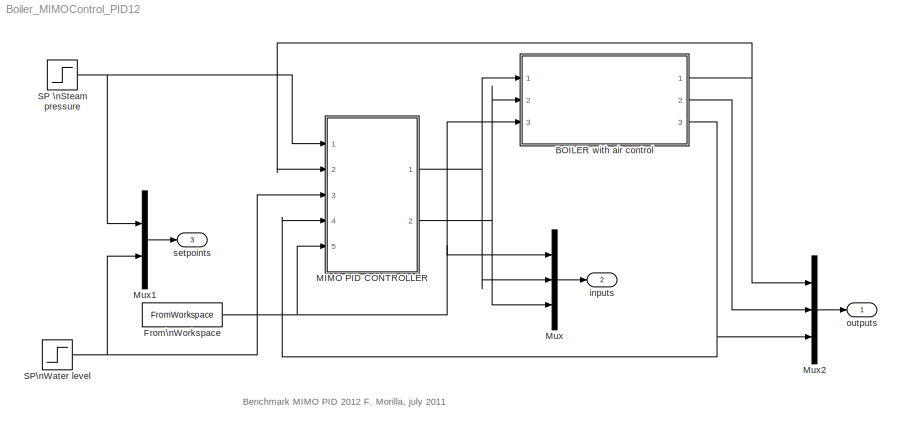
MODEL Boiler_MIMOControl_PID12
KIND model
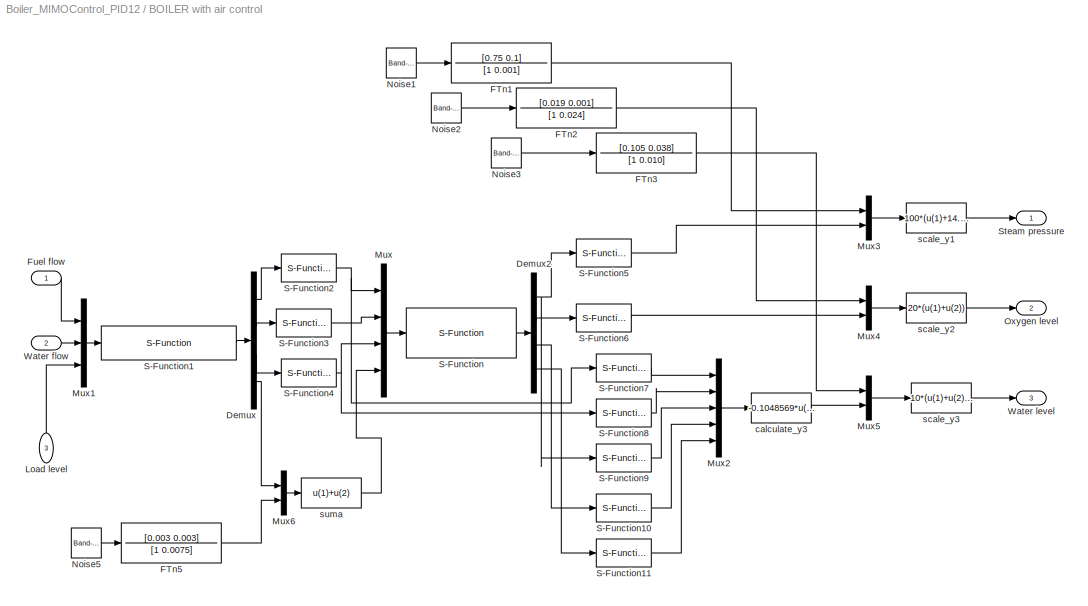
BLOCK [SubSystem] BOILER with air control
  Permissions = NoReadOrWrite
  Ports = [3, 3]
  RequestExecContextInheritance = off
  SID = 1
BLOCK [Demux] BOILER with air control/Demux
  DisplayOption = bar
  Ports = [1, 4]
  SID = 5
BLOCK [Demux] BOILER with air control/Demux2
  DisplayOption = bar
  Ports = [1, 4]
  SID = 6
BLOCK [TransferFcn] BOILER with air control/FTn1
  Denominator = [1 0.001]
  Numerator = [0.75 0.1]
  SID = 7
BLOCK [TransferFcn] BOILER with air control/FTn2
  Denominator = [1 0.024]
  Numerator = [0.019 0.001]
  SID = 8
BLOCK [TransferFcn] BOILER with air control/FTn3
  Denominator = [1 0.010]
  Numerator = [0.105 0.038]
  SID = 9
BLOCK [TransferFcn] BOILER with air control/FTn5
  Denominator = [1 0.0075]
  Numerator = [0.003 0.003]
  SID = 10
BLOCK [Inport] BOILER with air control/Fuel flow
  IconDisplay = Port number
  SID = 2
BLOCK [Inport] BOILER with air control/Load level
  IconDisplay = Port number
  Port = 3
  SID = 4
BLOCK [Mux] BOILER with air control/Mux
  DisplayOption = bar
  Ports = [4, 1]
  SID = 11
BLOCK [Mux] BOILER with air control/Mux1
  DisplayOption = bar
  Inputs = 3
  Ports = [3, 1]
  SID = 12
BLOCK [Mux] BOILER with air control/Mux2
  DisplayOption = bar
  Inputs = 5
  Ports = [5, 1]
  SID = 13
BLOCK [Mux] BOILER with air control/Mux3
  DisplayOption = bar
  Inputs = 2
  Ports = [2, 1]
  SID = 14
BLOCK [Mux] BOILER with air control/Mux4
  DisplayOption = bar
  Inputs = 2
  Ports = [2, 1]
  SID = 15
BLOCK [Mux] BOILER with air control/Mux5
  DisplayOption = bar
  Inputs = 2
  Ports = [2, 1]
  SID = 16
BLOCK [Mux] BOILER with air control/Mux6
  DisplayOption = bar
  Inputs = 2
  Ports = [2, 1]
  SID = 17
BLOCK [Reference] BOILER with air control/Noise1  REF=simulink/Sources/Band-Limited\nWhite Noise
  Cov = 0.001
  Ports = [0, 1]
  SID = 18
  ShowPortLabels = on
  SourceBlock = simulink/Sources/Band-Limited\nWhite Noise
  SourceProductBaseCode = SL
  SourceProductName = Simulink
  SourceType = Band-Limited White Noise.
  Ts = 0.1
  VectorParams1D = on
  seed = [23341]
BLOCK [Reference] BOILER with air control/Noise2  REF=simulink/Sources/Band-Limited\nWhite Noise
  Cov = 0.0125
  Ports = [0, 1]
  SID = 19
  ShowPortLabels = on
  SourceBlock = simulink/Sources/Band-Limited\nWhite Noise
  SourceProductBaseCode = SL
  SourceProductName = Simulink
  SourceType = Band-Limited White Noise.
  Ts = 0.1
  VectorParams1D = on
  seed = [23341]
BLOCK [Reference] BOILER with air control/Noise3  REF=simulink/Sources/Band-Limited\nWhite Noise
  Cov = 0.0001
  Ports = [0, 1]
  SID = 20
  ShowPortLabels = on
  SourceBlock = simulink/Sources/Band-Limited\nWhite Noise
  SourceProductBaseCode = SL
  SourceProductName = Simulink
  SourceType = Band-Limited White Noise.
  Ts = 0.1
  VectorParams1D = on
  seed = [23341]
BLOCK [Reference] BOILER with air control/Noise5  REF=simulink/Sources/Band-Limited\nWhite Noise
  Cov = 0.000001
  Ports = [0, 1]
  SID = 21
  ShowPortLabels = on
  SourceBlock = simulink/Sources/Band-Limited\nWhite Noise
  SourceProductBaseCode = SL
  SourceProductName = Simulink
  SourceType = Band-Limited White Noise.
  Ts = 0.1
  VectorParams1D = on
  seed = [23341]
BLOCK [Outport] BOILER with air control/Oxygen level
  IconDisplay = Port number
  Port = 2
  SID = 40
BLOCK [S-Function] BOILER with air control/S-Function
  EnableBusSupport = off
  FunctionName = boilerstates
  Parameters = xo
  Ports = [1, 1]
  SFcnIsStateOwnerBlock = off
  SFunctionDeploymentMode = off
  SID = 22
BLOCK [S-Function] BOILER with air control/S-Function1
  EnableBusSupport = off
  FunctionName = ratio_constraints_scale
  Parameters = [Uo' loadlevel(1,2)],xo(2)
  Ports = [1, 1]
  SFcnIsStateOwnerBlock = off
  SFunctionDeploymentMode = off
  SID = 23
BLOCK [S-Function] BOILER with air control/S-Function10
  EnableBusSupport = off
  FunctionName = register10
  Parameters = xo(3)
  Ports = [1, 1]
  SFcnIsStateOwnerBlock = off
  SFunctionDeploymentMode = off
  SID = 24
BLOCK [S-Function] BOILER with air control/S-Function11
  EnableBusSupport = off
  FunctionName = register10
  Parameters = xo(4)
  Ports = [1, 1]
  SFcnIsStateOwnerBlock = off
  SFunctionDeploymentMode = off
  SID = 25
BLOCK [S-Function] BOILER with air control/S-Function2
  EnableBusSupport = off
  FunctionName = register10
  Parameters = uo(1)
  Ports = [1, 1]
  SFcnIsStateOwnerBlock = off
  SFunctionDeploymentMode = off
  SID = 26
BLOCK [S-Function] BOILER with air control/S-Function3
  EnableBusSupport = off
  FunctionName = register10
  Parameters = uo(2)
  Ports = [1, 1]
  SFcnIsStateOwnerBlock = off
  SFunctionDeploymentMode = off
  SID = 27
BLOCK [S-Function] BOILER with air control/S-Function4
  EnableBusSupport = off
  FunctionName = register15
  Parameters = uo(3)
  Ports = [1, 1]
  SFcnIsStateOwnerBlock = off
  SFunctionDeploymentMode = off
  SID = 28
BLOCK [S-Function] BOILER with air control/S-Function5
  EnableBusSupport = off
  FunctionName = register15
  Parameters = xo(1)
  Ports = [1, 1]
  SFcnIsStateOwnerBlock = off
  SFunctionDeploymentMode = off
  SID = 29
BLOCK [S-Function] BOILER with air control/S-Function6
  EnableBusSupport = off
  FunctionName = register20
  Parameters = xo(2)
  Ports = [1, 1]
  SFcnIsStateOwnerBlock = off
  SFunctionDeploymentMode = off
  SID = 30
BLOCK [S-Function] BOILER with air control/S-Function7
  EnableBusSupport = off
  FunctionName = register10
  Parameters = uo(1)
  Ports = [1, 1]
  SFcnIsStateOwnerBlock = off
  SFunctionDeploymentMode = off
  SID = 31
BLOCK [S-Function] BOILER with air control/S-Function8
  EnableBusSupport = off
  FunctionName = register10
  Parameters = uo(3)
  Ports = [1, 1]
  SFcnIsStateOwnerBlock = off
  SFunctionDeploymentMode = off
  SID = 32
BLOCK [S-Function] BOILER with air control/S-Function9
  EnableBusSupport = off
  FunctionName = register10
  Parameters = xo(1)
  Ports = [1, 1]
  SFcnIsStateOwnerBlock = off
  SFunctionDeploymentMode = off
  SID = 33
BLOCK [Outport] BOILER with air control/Steam pressure
  IconDisplay = Port number
  SID = 39
BLOCK [Inport] BOILER with air control/Water flow
  IconDisplay = Port number
  Port = 2
  SID = 3
BLOCK [Outport] BOILER with air control/Water level
  IconDisplay = Port number
  Port = 3
  SID = 41
BLOCK [Fcn] BOILER with air control/calculate_y3
  Expr = -0.1048569*u(3)+0.15479*u(4)+0.4954961*u(5)*u(3)-0.20797*u(2)+1.2720*u(1)+((-324212.7805*u(3)-99556.24778)*(1-0.0011850*u(4)))/(u(4)*(u(3)-1704.50476))-103.7351;
  SID = 34
BLOCK [Fcn] BOILER with air control/scale_y1
  Expr = 100*(u(1)+14.2140*u(2)-142.14)/(426.42-142.14)
  SID = 35
BLOCK [Fcn] BOILER with air control/scale_y2
  Expr = 20*(u(1)+u(2))
  SID = 36
BLOCK [Fcn] BOILER with air control/scale_y3
  Expr = 10*(u(1)+u(2)+5)
  SID = 37
BLOCK [Fcn] BOILER with air control/suma
  Expr = u(1)+u(2)
  SID = 38
BLOCK [FromWorkspace] From\nWorkspace
  SID = 42
  SampleTime = 0
  VariableName = loadlevel
  ZeroCross = on
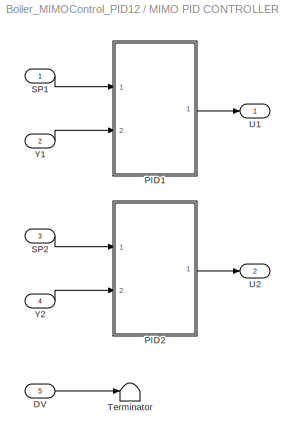
BLOCK [SubSystem] MIMO PID CONTROLLER
  Ports = [5, 2]
  RequestExecContextInheritance = off
  SID = 43
BLOCK [Inport] MIMO PID CONTROLLER/DV
  IconDisplay = Port number
  Port = 5
  SID = 48
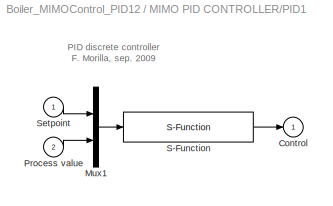
BLOCK [SubSystem] MIMO PID CONTROLLER/PID1
  Ports = [2, 1]
  RequestExecContextInheritance = off
  SID = 49
BLOCK [Outport] MIMO PID CONTROLLER/PID1/Control
  IconDisplay = Port number
  InitialOutput = 0
  SID = 54
BLOCK [Mux] MIMO PID CONTROLLER/PID1/Mux1
  DisplayOption = bar
  Inputs = 2
  Ports = [2, 1]
  SID = 52
BLOCK [Inport] MIMO PID CONTROLLER/PID1/Process value
  IconDisplay = Port number
  Port = 2
  SID = 51
BLOCK [S-Function] MIMO PID CONTROLLER/PID1/S-Function
  EnableBusSupport = off
  FunctionName = PIDdiscreteA_awRRL
  Parameters = structure,Yo(1),Uo(1),tc,kp1,ti1,td1,alfa,umin,umax,rlu1
  Ports = [1, 1]
  SFcnIsStateOwnerBlock = off
  SFunctionDeploymentMode = off
  SID = 53
BLOCK [Inport] MIMO PID CONTROLLER/PID1/Setpoint
  IconDisplay = Port number
  SID = 50
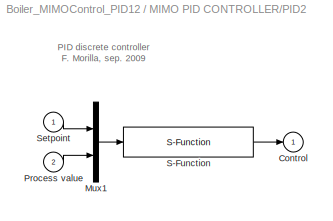
BLOCK [SubSystem] MIMO PID CONTROLLER/PID2
  Ports = [2, 1]
  RequestExecContextInheritance = off
  SID = 56
BLOCK [Outport] MIMO PID CONTROLLER/PID2/Control
  IconDisplay = Port number
  InitialOutput = 0
  SID = 61
BLOCK [Mux] MIMO PID CONTROLLER/PID2/Mux1
  DisplayOption = bar
  Inputs = 2
  Ports = [2, 1]
  SID = 59
BLOCK [Inport] MIMO PID CONTROLLER/PID2/Process value
  IconDisplay = Port number
  Port = 2
  SID = 58
BLOCK [S-Function] MIMO PID CONTROLLER/PID2/S-Function
  EnableBusSupport = off
  FunctionName = PIDdiscreteA_awRRL
  Parameters = structure,Yo(3),Uo(2),tc,kp2,ti2,td2,alfa,umin,umax,rlu2
  Ports = [1, 1]
  SFcnIsStateOwnerBlock = off
  SFunctionDeploymentMode = off
  SID = 60
BLOCK [Inport] MIMO PID CONTROLLER/PID2/Setpoint
  IconDisplay = Port number
  SID = 57
BLOCK [Inport] MIMO PID CONTROLLER/SP1
  IconDisplay = Port number
  SID = 44
BLOCK [Inport] MIMO PID CONTROLLER/SP2
  IconDisplay = Port number
  Port = 3
  SID = 46
BLOCK [Terminator] MIMO PID CONTROLLER/Terminator
  SID = 63
BLOCK [Outport] MIMO PID CONTROLLER/U1
  IconDisplay = Port number
  SID = 64
BLOCK [Outport] MIMO PID CONTROLLER/U2
  IconDisplay = Port number
  Port = 2
  SID = 65
BLOCK [Inport] MIMO PID CONTROLLER/Y1
  IconDisplay = Port number
  Port = 2
  SID = 45
BLOCK [Inport] MIMO PID CONTROLLER/Y2
  IconDisplay = Port number
  Port = 4
  SID = 47
BLOCK [Mux] Mux
  DisplayOption = bar
  Inputs = 3
  Ports = [3, 1]
  SID = 66
BLOCK [Mux] Mux1
  DisplayOption = bar
  Inputs = 2
  Ports = [2, 1]
  SID = 67
BLOCK [Mux] Mux2
  DisplayOption = bar
  Inputs = 3
  Ports = [3, 1]
  SID = 68
BLOCK [Step] SP \nSteam pressure
  After = Yf(1)
  Before = Yo(1)
  SID = 70
  SampleTime = 0
  Time = tchange
BLOCK [Step] SP\nWater level
  After = Yf(3)
  Before = Yo(3)
  SID = 69
  SampleTime = 0
  Time = tchange
BLOCK [Outport] inputs
  IconDisplay = Port number
  Port = 2
  SID = 72
BLOCK [Outport] outputs
  IconDisplay = Port number
  SID = 71
BLOCK [Outport] setpoints
  IconDisplay = Port number
  Port = 3
  SID = 73
ANNOTATION (root): Benchmark MIMO PID 2012 F. Morilla, july 2011
ANNOTATION MIMO PID CONTROLLER/PID1: PID discrete controller\nF. Morilla, sep. 2009
ANNOTATION MIMO PID CONTROLLER/PID2: PID discrete controller\nF. Morilla, sep. 2009
NET BOILER with air control/Demux2:1 -> BOILER with air control/S-Function5:1, BOILER with air control/S-Function9:1
LINE BOILER with air control/Demux2:2 -> BOILER with air control/S-Function6:1
LINE BOILER with air control/Demux2:3 -> BOILER with air control/S-Function10:1
LINE BOILER with air control/Demux2:4 -> BOILER with air control/S-Function11:1
LINE BOILER with air control/Demux:1 -> BOILER with air control/S-Function2:1
LINE BOILER with air control/Demux:2 -> BOILER with air control/S-Function3:1
LINE BOILER with air control/Demux:3 -> BOILER with air control/S-Function4:1
LINE BOILER with air control/Demux:4 -> BOILER with air control/Mux6:1
LINE BOILER with air control/FTn1:1 -> BOILER with air control/Mux3:1
LINE BOILER with air control/FTn2:1 -> BOILER with air control/Mux4:1
LINE BOILER with air control/FTn3:1 -> BOILER with air control/Mux5:1
LINE BOILER with air control/FTn5:1 -> BOILER with air control/Mux6:2
LINE BOILER with air control/Fuel flow:1 -> BOILER with air control/Mux1:1
LINE BOILER with air control/Load level:1 -> BOILER with air control/Mux1:3
LINE BOILER with air control/Mux1:1 -> BOILER with air control/S-Function1:1
LINE BOILER with air control/Mux2:1 -> BOILER with air control/calculate_y3:1
LINE BOILER with air control/Mux3:1 -> BOILER with air control/scale_y1:1
LINE BOILER with air control/Mux4:1 -> BOILER with air control/scale_y2:1
LINE BOILER with air control/Mux5:1 -> BOILER with air control/scale_y3:1
LINE BOILER with air control/Mux6:1 -> BOILER with air control/suma:1
LINE BOILER with air control/Mux:1 -> BOILER with air control/S-Function:1
LINE BOILER with air control/Noise1:1 -> BOILER with air control/FTn1:1
LINE BOILER with air control/Noise2:1 -> BOILER with air control/FTn2:1
LINE BOILER with air control/Noise3:1 -> BOILER with air control/FTn3:1
LINE BOILER with air control/Noise5:1 -> BOILER with air control/FTn5:1
LINE BOILER with air control/S-Function10:1 -> BOILER with air control/Mux2:4
LINE BOILER with air control/S-Function11:1 -> BOILER with air control/Mux2:5
LINE BOILER with air control/S-Function1:1 -> BOILER with air control/Demux:1
NET BOILER with air control/S-Function2:1 -> BOILER with air control/Mux:1, BOILER with air control/S-Function7:1
LINE BOILER with air control/S-Function3:1 -> BOILER with air control/Mux:2
NET BOILER with air control/S-Function4:1 -> BOILER with air control/Mux:3, BOILER with air control/S-Function8:1
LINE BOILER with air control/S-Function5:1 -> BOILER with air control/Mux3:2
LINE BOILER with air control/S-Function6:1 -> BOILER with air control/Mux4:2
LINE BOILER with air control/S-Function7:1 -> BOILER with air control/Mux2:1
LINE BOILER with air control/S-Function8:1 -> BOILER with air control/Mux2:2
LINE BOILER with air control/S-Function9:1 -> BOILER with air control/Mux2:3
LINE BOILER with air control/S-Function:1 -> BOILER with air control/Demux2:1
LINE BOILER with air control/Water flow:1 -> BOILER with air control/Mux1:2
LINE BOILER with air control/calculate_y3:1 -> BOILER with air control/Mux5:2
LINE BOILER with air control/scale_y1:1 -> BOILER with air control/Steam pressure:1
LINE BOILER with air control/scale_y2:1 -> BOILER with air control/Oxygen level:1
LINE BOILER with air control/scale_y3:1 -> BOILER with air control/Water level:1
LINE BOILER with air control/suma:1 -> BOILER with air control/Mux:4
NET BOILER with air control:1 -> MIMO PID CONTROLLER:2, Mux2:1
LINE BOILER with air control:2 -> Mux2:2
NET BOILER with air control:3 -> MIMO PID CONTROLLER:4, Mux2:3
NET From\nWorkspace:1 -> BOILER with air control:3, MIMO PID CONTROLLER:5, Mux:1
LINE MIMO PID CONTROLLER/DV:1 -> MIMO PID CONTROLLER/Terminator:1
LINE MIMO PID CONTROLLER/PID1/Mux1:1 -> MIMO PID CONTROLLER/PID1/S-Function:1
LINE MIMO PID CONTROLLER/PID1/Process value:1 -> MIMO PID CONTROLLER/PID1/Mux1:2
LINE MIMO PID CONTROLLER/PID1/S-Function:1 -> MIMO PID CONTROLLER/PID1/Control:1
LINE MIMO PID CONTROLLER/PID1/Setpoint:1 -> MIMO PID CONTROLLER/PID1/Mux1:1
LINE MIMO PID CONTROLLER/PID1:1 -> MIMO PID CONTROLLER/U1:1
LINE MIMO PID CONTROLLER/PID2/Mux1:1 -> MIMO PID CONTROLLER/PID2/S-Function:1
LINE MIMO PID CONTROLLER/PID2/Process value:1 -> MIMO PID CONTROLLER/PID2/Mux1:2
LINE MIMO PID CONTROLLER/PID2/S-Function:1 -> MIMO PID CONTROLLER/PID2/Control:1
LINE MIMO PID CONTROLLER/PID2/Setpoint:1 -> MIMO PID CONTROLLER/PID2/Mux1:1
LINE MIMO PID CONTROLLER/PID2:1 -> MIMO PID CONTROLLER/U2:1
LINE MIMO PID CONTROLLER/SP1:1 -> MIMO PID CONTROLLER/PID1:1
LINE MIMO PID CONTROLLER/SP2:1 -> MIMO PID CONTROLLER/PID2:1
LINE MIMO PID CONTROLLER/Y1:1 -> MIMO PID CONTROLLER/PID1:2
LINE MIMO PID CONTROLLER/Y2:1 -> MIMO PID CONTROLLER/PID2:2
NET MIMO PID CONTROLLER:1 -> BOILER with air control:1, Mux:2
NET MIMO PID CONTROLLER:2 -> BOILER with air control:2, Mux:3
LINE Mux1:1 -> setpoints:1
LINE Mux2:1 -> outputs:1
LINE Mux:1 -> inputs:1
NET SP \nSteam pressure:1 -> MIMO PID CONTROLLER:1, Mux1:1
NET SP\nWater level:1 -> MIMO PID CONTROLLER:3, Mux1:2
note: NET lines group one-source signal fan-out (src -> all destinations, sorted); 1:1 wires keep LINE
